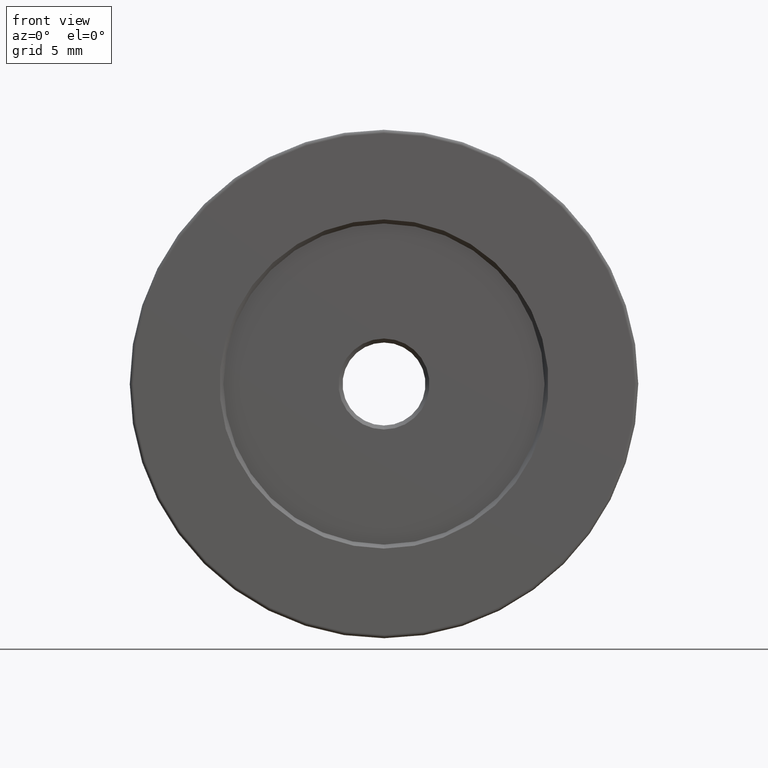
[diagram: clean part render]
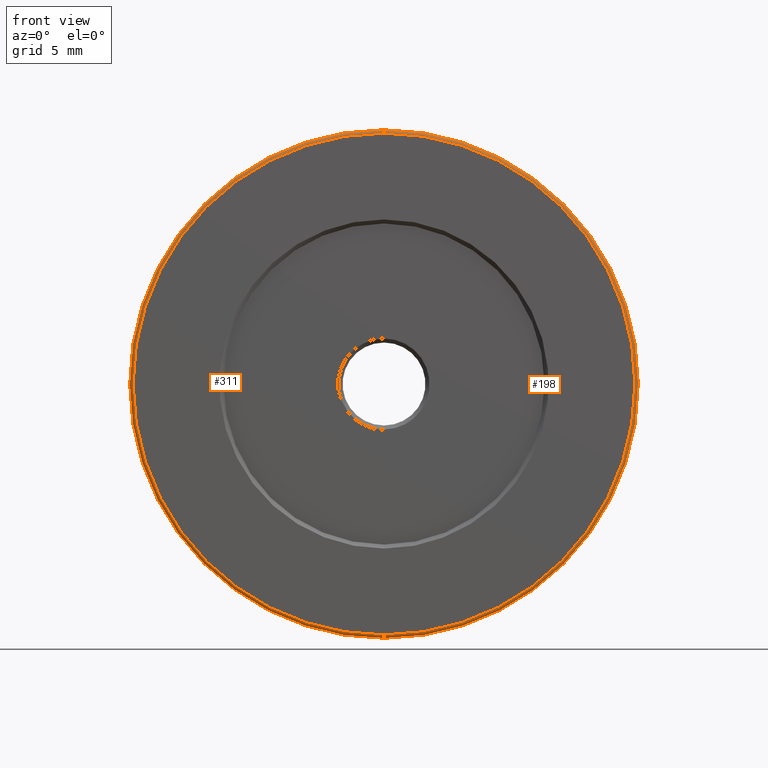
[diagram: same view with one multi-face feature highlighted, each face labeled with its STEP entity id]
A machine part, front view. The highlighted faces form ONE feature: a constant-radius fillet chain: 2 tangent blend faces with common blend radius 0.25 mm. The faces share edges in the B-rep.
Their STEP definitions:
[1] entity #311 (Torus):
#26 = CARTESIAN_POINT ( 'NONE',  ( -7.546808913101048510, -7.643595127302727832, 56.74999999999999289 ) ) ;
#27 = DIRECTION ( 'NONE',  ( 0.000000000000000000, 0.000000000000000000, -1.000000000000000000 ) ) ;
#37 = VERTEX_POINT ( 'NONE', #417 ) ;
#40 = AXIS2_PLACEMENT_3D ( 'NONE', #279, #380, #27 ) ;
#63 = VERTEX_POINT ( 'NONE', #571 ) ;
#70 = ORIENTED_EDGE ( 'NONE', *, *, #316, .F. ) ;
#90 = DIRECTION ( 'NONE',  ( -1.000000000000000000, 0.000000000000000000, 0.000000000000000000 ) ) ;
#128 = DIRECTION ( 'NONE',  ( 0.000000000000000000, 0.000000000000000000, 1.000000000000000000 ) ) ;
#131 = DIRECTION ( 'NONE',  ( -0.000000000000000000, -1.000000000000000000, -0.000000000000000000 ) ) ;
#134 = FACE_OUTER_BOUND ( 'NONE', #215, .T. ) ;
#145 = CIRCLE ( 'NONE', #209, 0.2500000000000002220 ) ;
#151 = ORIENTED_EDGE ( 'NONE', *, *, #422, .F. ) ;
#155 = VERTEX_POINT ( 'NONE', #408 ) ;
#156 = DIRECTION ( 'NONE',  ( 0.000000000000000000, 0.000000000000000000, 1.000000000000000000 ) ) ;
#170 = CARTESIAN_POINT ( 'NONE',  ( -7.546808913101048510, -7.643595127302727832, 38.00000000000000000 ) ) ;
#209 = AXIS2_PLACEMENT_3D ( 'NONE', #26, #90, #550 ) ;
#215 = EDGE_LOOP ( 'NONE', ( #70, #424, #324, #151 ) ) ;
#230 = CARTESIAN_POINT ( 'NONE',  ( -7.546808913101048510, -7.643595127302727832, 38.00000000000000000 ) ) ;
#245 = EDGE_CURVE ( 'NONE', #63, #155, #338, .T. ) ;
#250 = CIRCLE ( 'NONE', #437, 18.99999999999999645 ) ;
#279 = CARTESIAN_POINT ( 'NONE',  ( -7.546808913101045846, -7.643595127302727832, 19.25000000000000000 ) ) ;
#303 = VERTEX_POINT ( 'NONE', #423 ) ;
#311 = ADVANCED_FACE ( 'NONE', ( #134 ), #393, .T. ) ;
#315 = CIRCLE ( 'NONE', #40, 0.2500000000000002220 ) ;
#316 = EDGE_CURVE ( 'NONE', #155, #37, #315, .T. ) ;
#319 = CARTESIAN_POINT ( 'NONE',  ( -7.546808913101048510, -7.893595127302726944, 38.00000000000000000 ) ) ;
#324 = ORIENTED_EDGE ( 'NONE', *, *, #544, .T. ) ;
#338 = CIRCLE ( 'NONE', #460, 18.74999999999999645 ) ;
#370 = DIRECTION ( 'NONE',  ( 0.000000000000000000, 1.000000000000000000, 0.000000000000000000 ) ) ;
#380 = DIRECTION ( 'NONE',  ( 1.000000000000000000, -0.000000000000000000, 1.224646799147353207E-16 ) ) ;
#393 = TOROIDAL_SURFACE ( 'NONE', #605, 18.75000000000000000, 0.2500000000000000000 ) ;
#408 = CARTESIAN_POINT ( 'NONE',  ( -7.546808913101045846, -7.893595127302726944, 19.25000000000000000 ) ) ;
#417 = CARTESIAN_POINT ( 'NONE',  ( -7.546808913101048510, -7.643595127302727832, 19.00000000000000000 ) ) ;
#422 = EDGE_CURVE ( 'NONE', #37, #303, #250, .T. ) ;
#423 = CARTESIAN_POINT ( 'NONE',  ( -7.546808913101045846, -7.643595127302727832, 56.99999999999999289 ) ) ;
#424 = ORIENTED_EDGE ( 'NONE', *, *, #245, .F. ) ;
#437 = AXIS2_PLACEMENT_3D ( 'NONE', #170, #439, #156 ) ;
#439 = DIRECTION ( 'NONE',  ( 0.000000000000000000, 1.000000000000000000, 0.000000000000000000 ) ) ;
#456 = DIRECTION ( 'NONE',  ( 0.000000000000000000, 0.000000000000000000, 1.000000000000000000 ) ) ;
#460 = AXIS2_PLACEMENT_3D ( 'NONE', #319, #131, #128 ) ;
#544 = EDGE_CURVE ( 'NONE', #63, #303, #145, .T. ) ;
#550 = DIRECTION ( 'NONE',  ( 0.000000000000000000, 0.000000000000000000, 1.000000000000000000 ) ) ;
#571 = CARTESIAN_POINT ( 'NONE',  ( -7.546808913101048510, -7.893595127302726944, 56.74999999999999289 ) ) ;
#605 = AXIS2_PLACEMENT_3D ( 'NONE', #230, #370, #456 ) ;
[2] entity #198 (Torus):
#14 = ORIENTED_EDGE ( 'NONE', *, *, #106, .F. ) ;
#24 = DIRECTION ( 'NONE',  ( 0.000000000000000000, 0.000000000000000000, 1.000000000000000000 ) ) ;
#26 = CARTESIAN_POINT ( 'NONE',  ( -7.546808913101048510, -7.643595127302727832, 56.74999999999999289 ) ) ;
#27 = DIRECTION ( 'NONE',  ( 0.000000000000000000, 0.000000000000000000, -1.000000000000000000 ) ) ;
#30 = AXIS2_PLACEMENT_3D ( 'NONE', #576, #530, #442 ) ;
#37 = VERTEX_POINT ( 'NONE', #417 ) ;
#40 = AXIS2_PLACEMENT_3D ( 'NONE', #279, #380, #27 ) ;
#44 = EDGE_LOOP ( 'NONE', ( #14, #132, #487, #143 ) ) ;
#61 = CARTESIAN_POINT ( 'NONE',  ( -7.546808913101048510, -7.643595127302727832, 38.00000000000000000 ) ) ;
#63 = VERTEX_POINT ( 'NONE', #571 ) ;
#69 = FACE_OUTER_BOUND ( 'NONE', #44, .T. ) ;
#90 = DIRECTION ( 'NONE',  ( -1.000000000000000000, 0.000000000000000000, 0.000000000000000000 ) ) ;
#106 = EDGE_CURVE ( 'NONE', #155, #63, #428, .T. ) ;
#114 = TOROIDAL_SURFACE ( 'NONE', #386, 18.75000000000000000, 0.2500000000000000000 ) ;
#132 = ORIENTED_EDGE ( 'NONE', *, *, #316, .T. ) ;
#143 = ORIENTED_EDGE ( 'NONE', *, *, #544, .F. ) ;
#145 = CIRCLE ( 'NONE', #209, 0.2500000000000002220 ) ;
#155 = VERTEX_POINT ( 'NONE', #408 ) ;
#198 = ADVANCED_FACE ( 'NONE', ( #69 ), #114, .T. ) ;
#209 = AXIS2_PLACEMENT_3D ( 'NONE', #26, #90, #550 ) ;
#237 = DIRECTION ( 'NONE',  ( 0.000000000000000000, 0.000000000000000000, 1.000000000000000000 ) ) ;
#279 = CARTESIAN_POINT ( 'NONE',  ( -7.546808913101045846, -7.643595127302727832, 19.25000000000000000 ) ) ;
#302 = DIRECTION ( 'NONE',  ( 0.000000000000000000, 1.000000000000000000, 0.000000000000000000 ) ) ;
#303 = VERTEX_POINT ( 'NONE', #423 ) ;
#315 = CIRCLE ( 'NONE', #40, 0.2500000000000002220 ) ;
#316 = EDGE_CURVE ( 'NONE', #155, #37, #315, .T. ) ;
#326 = AXIS2_PLACEMENT_3D ( 'NONE', #425, #553, #237 ) ;
#368 = CIRCLE ( 'NONE', #326, 18.99999999999999645 ) ;
#380 = DIRECTION ( 'NONE',  ( 1.000000000000000000, -0.000000000000000000, 1.224646799147353207E-16 ) ) ;
#386 = AXIS2_PLACEMENT_3D ( 'NONE', #61, #302, #24 ) ;
#408 = CARTESIAN_POINT ( 'NONE',  ( -7.546808913101045846, -7.893595127302726944, 19.25000000000000000 ) ) ;
#417 = CARTESIAN_POINT ( 'NONE',  ( -7.546808913101048510, -7.643595127302727832, 19.00000000000000000 ) ) ;
#423 = CARTESIAN_POINT ( 'NONE',  ( -7.546808913101045846, -7.643595127302727832, 56.99999999999999289 ) ) ;
#425 = CARTESIAN_POINT ( 'NONE',  ( -7.546808913101048510, -7.643595127302727832, 38.00000000000000000 ) ) ;
#428 = CIRCLE ( 'NONE', #30, 18.74999999999999645 ) ;
#442 = DIRECTION ( 'NONE',  ( 0.000000000000000000, 0.000000000000000000, 1.000000000000000000 ) ) ;
#487 = ORIENTED_EDGE ( 'NONE', *, *, #577, .F. ) ;
#530 = DIRECTION ( 'NONE',  ( -0.000000000000000000, -1.000000000000000000, -0.000000000000000000 ) ) ;
#544 = EDGE_CURVE ( 'NONE', #63, #303, #145, .T. ) ;
#550 = DIRECTION ( 'NONE',  ( 0.000000000000000000, 0.000000000000000000, 1.000000000000000000 ) ) ;
#553 = DIRECTION ( 'NONE',  ( 0.000000000000000000, 1.000000000000000000, 0.000000000000000000 ) ) ;
#571 = CARTESIAN_POINT ( 'NONE',  ( -7.546808913101048510, -7.893595127302726944, 56.74999999999999289 ) ) ;
#576 = CARTESIAN_POINT ( 'NONE',  ( -7.546808913101048510, -7.893595127302726944, 38.00000000000000000 ) ) ;
#577 = EDGE_CURVE ( 'NONE', #303, #37, #368, .T. ) ;